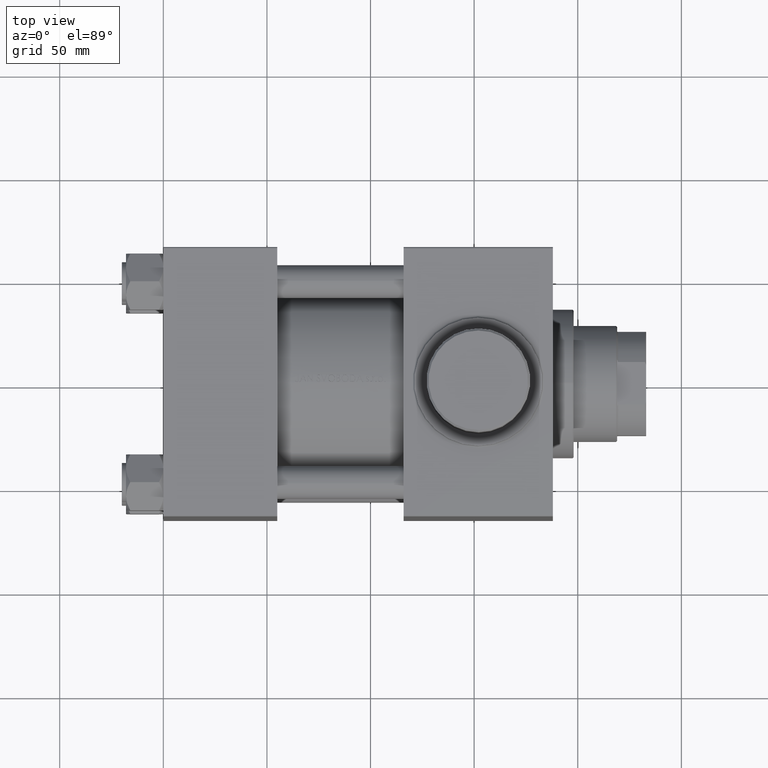
[diagram: clean part render]
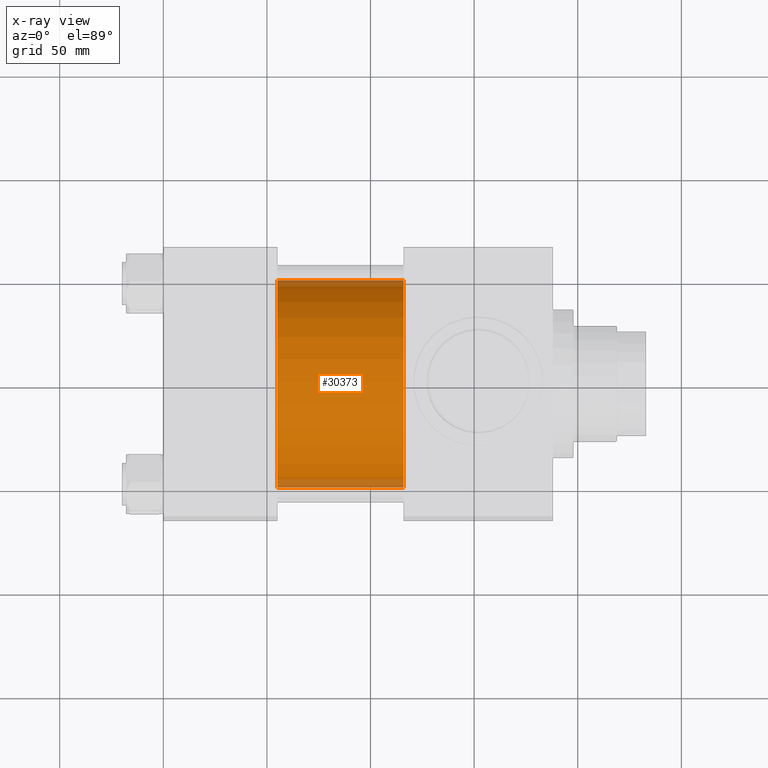
[diagram: x-ray — body ghosted, one internal face saturated and labeled with its STEP entity id]
A machine part, top view, then the same camera in x-ray: the body is ghosted and one INTERNAL B-rep face — a face not visible from any outside direction — is saturated and labeled: STEP entity #30373.
In plain terms, the highlighted cylindrical surface (partial cylindrical patch) has radius 50 mm, axis along (-1, -0, 0).
Its self-contained STEP definition (entity closure, byte-faithful):
#96 = VECTOR ( 'NONE', #24832, 1000.000000000000000 ) ;
#487 = CIRCLE ( 'NONE', #13371, 50.00000000000000000 ) ;
#2627 = VERTEX_POINT ( 'NONE', #19110 ) ;
#3216 = DIRECTION ( 'NONE',  ( -1.000000000000000000, -0.000000000000000000, -0.000000000000000000 ) ) ;
#4889 = DIRECTION ( 'NONE',  ( 0.000000000000000000, 0.000000000000000000, 1.000000000000000000 ) ) ;
#6308 = EDGE_CURVE ( 'NONE', #2627, #16296, #487, .T. ) ;
#8051 = VECTOR ( 'NONE', #3216, 1000.000000000000000 ) ;
#8437 = FACE_OUTER_BOUND ( 'NONE', #22107, .T. ) ;
#10084 = DIRECTION ( 'NONE',  ( 0.000000000000000000, 0.000000000000000000, -1.000000000000000000 ) ) ;
#10095 = CARTESIAN_POINT ( 'NONE',  ( 115.9999999999999858, 2.653787043783150713E-15, -50.00000000000000000 ) ) ;
#11943 = DIRECTION ( 'NONE',  ( 0.000000000000000000, 0.000000000000000000, -1.000000000000000000 ) ) ;
#12477 = CARTESIAN_POINT ( 'NONE',  ( 115.9999999999999858, -3.469446951953614189E-15, 0.000000000000000000 ) ) ;
#12712 = DIRECTION ( 'NONE',  ( -1.000000000000000000, -0.000000000000000000, -0.000000000000000000 ) ) ;
#12930 = AXIS2_PLACEMENT_3D ( 'NONE', #12477, #12712, #4889 ) ;
#13371 = AXIS2_PLACEMENT_3D ( 'NONE', #45644, #42557, #10084 ) ;
#16296 = VERTEX_POINT ( 'NONE', #39814 ) ;
#19034 = CARTESIAN_POINT ( 'NONE',  ( 115.9999999999999858, -3.469446951953614189E-15, 0.000000000000000000 ) ) ;
#19110 = CARTESIAN_POINT ( 'NONE',  ( 55.00000000000000000, -3.469446951953614189E-15, 50.00000000000000000 ) ) ;
#20446 = EDGE_CURVE ( 'NONE', #46819, #16296, #21219, .T. ) ;
#20688 = CARTESIAN_POINT ( 'NONE',  ( 115.9999999999999858, 2.653787043783150713E-15, -50.00000000000000000 ) ) ;
#21219 = LINE ( 'NONE', #10095, #8051 ) ;
#22107 = EDGE_LOOP ( 'NONE', ( #23889, #42302, #26929, #28202 ) ) ;
#23889 = ORIENTED_EDGE ( 'NONE', *, *, #26501, .T. ) ;
#24597 = LINE ( 'NONE', #39052, #96 ) ;
#24832 = DIRECTION ( 'NONE',  ( -1.000000000000000000, -0.000000000000000000, -0.000000000000000000 ) ) ;
#26501 = EDGE_CURVE ( 'NONE', #27102, #46819, #37810, .T. ) ;
#26929 = ORIENTED_EDGE ( 'NONE', *, *, #6308, .F. ) ;
#27102 = VERTEX_POINT ( 'NONE', #29851 ) ;
#28202 = ORIENTED_EDGE ( 'NONE', *, *, #36768, .F. ) ;
#28743 = AXIS2_PLACEMENT_3D ( 'NONE', #19034, #41081, #11943 ) ;
#29851 = CARTESIAN_POINT ( 'NONE',  ( 115.9999999999999858, -3.469446951953614189E-15, 50.00000000000000000 ) ) ;
#30373 = ADVANCED_FACE ( 'NONE', ( #8437 ), #34044, .F. ) ;
#34044 = CYLINDRICAL_SURFACE ( 'NONE', #12930, 50.00000000000000000 ) ;
#36768 = EDGE_CURVE ( 'NONE', #27102, #2627, #24597, .T. ) ;
#37810 = CIRCLE ( 'NONE', #28743, 50.00000000000000000 ) ;
#39052 = CARTESIAN_POINT ( 'NONE',  ( 115.9999999999999858, -3.469446951953614189E-15, 50.00000000000000000 ) ) ;
#39814 = CARTESIAN_POINT ( 'NONE',  ( 55.00000000000000000, 2.653787043783150713E-15, -50.00000000000000000 ) ) ;
#41081 = DIRECTION ( 'NONE',  ( 1.000000000000000000, 0.000000000000000000, 0.000000000000000000 ) ) ;
#42302 = ORIENTED_EDGE ( 'NONE', *, *, #20446, .T. ) ;
#42557 = DIRECTION ( 'NONE',  ( 1.000000000000000000, 0.000000000000000000, 0.000000000000000000 ) ) ;
#45644 = CARTESIAN_POINT ( 'NONE',  ( 55.00000000000000000, -3.469446951953614189E-15, 0.000000000000000000 ) ) ;
#46819 = VERTEX_POINT ( 'NONE', #20688 ) ;